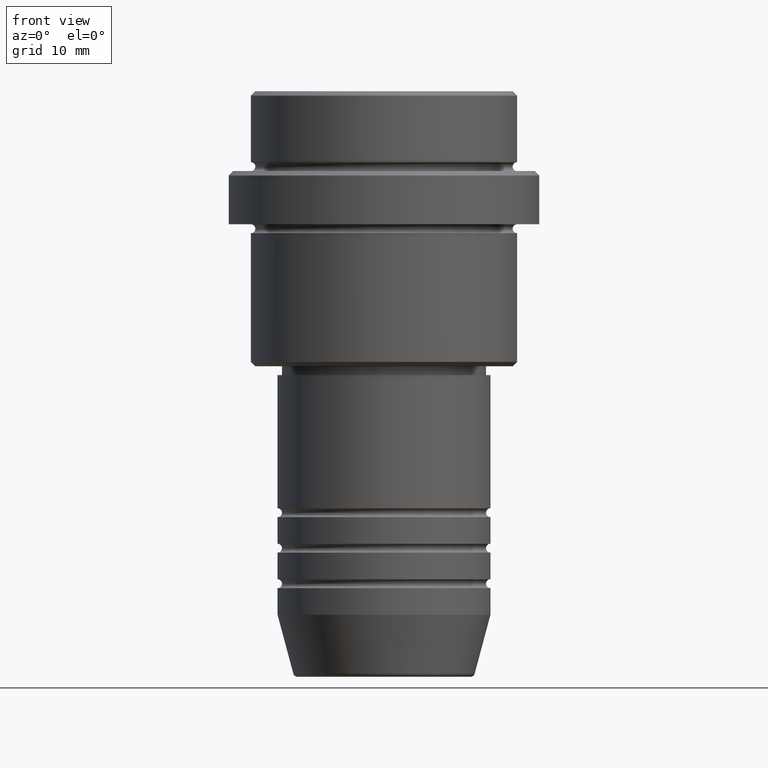
[diagram: clean part render]
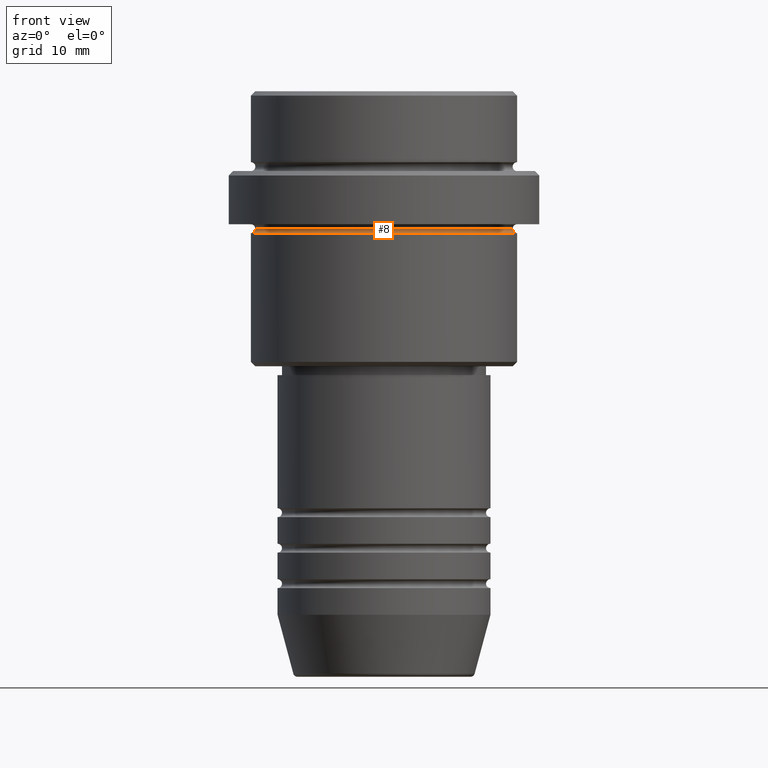
[diagram: same view with one face highlighted and labeled with its STEP entity id]
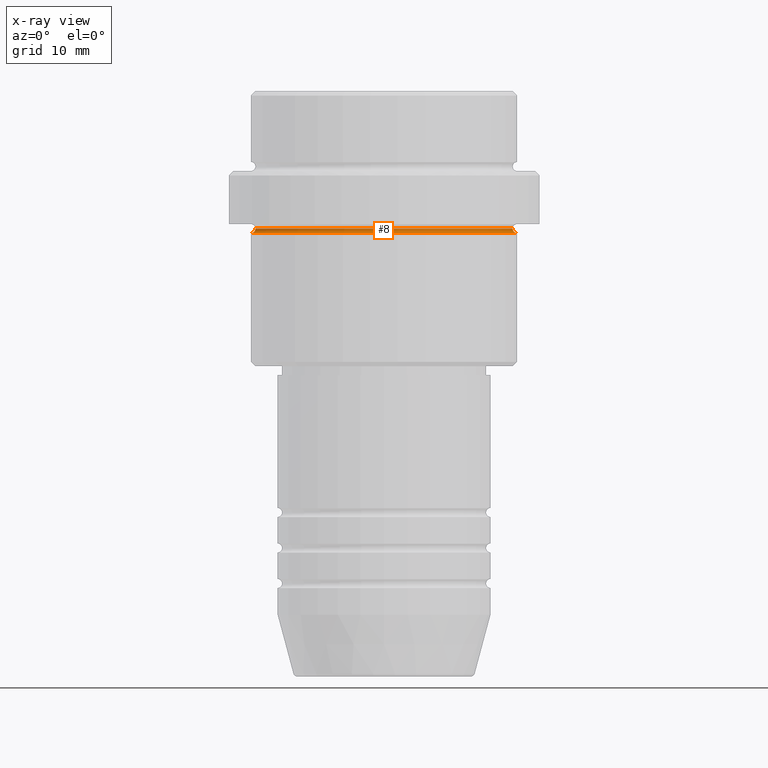
[diagram: x-ray of the same camera — body ghosted, the highlighted face saturated]
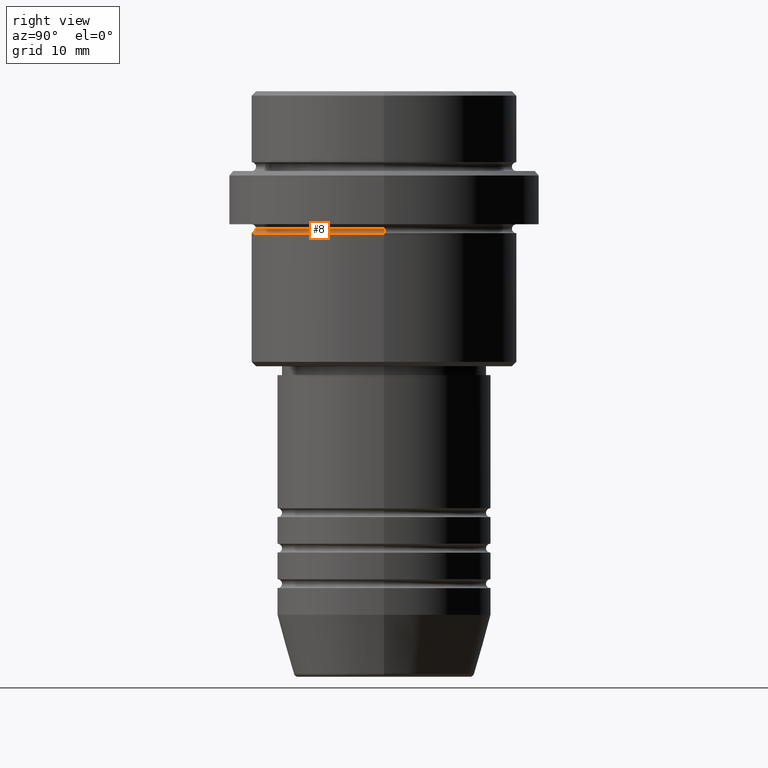
[diagram: same view with one face highlighted and labeled with its STEP entity id]
A machine part, front view. The second image highlights one B-rep face of the part: STEP entity #8.
The next image is the same camera in x-ray: the body ghosted, the highlighted face saturated — about 0% of this face is hidden behind the body in this view.
A second angle (right view) of the same face is appended — the face is thin or edge-on in the first view.
In plain terms, the highlighted toroidal blend (fillet) surface has major radius 15 mm and minor (blend) radius 0.5 mm.
Its self-contained STEP definition (entity closure, byte-faithful):
#2 = VERTEX_POINT ( 'NONE', #1239 ) ;
#8 = ADVANCED_FACE ( 'NONE', ( #243 ), #893, .F. ) ;
#12 = CARTESIAN_POINT ( 'NONE',  ( -14.99999999999999467, 0.000000000000000000, -15.50000000000000000 ) ) ;
#41 = AXIS2_PLACEMENT_3D ( 'NONE', #389, #950, #837 ) ;
#95 = DIRECTION ( 'NONE',  ( 1.000000000000000000, 0.000000000000000000, 0.000000000000000000 ) ) ;
#116 = DIRECTION ( 'NONE',  ( -0.000000000000000000, -1.000000000000000000, -0.000000000000000000 ) ) ;
#156 = VERTEX_POINT ( 'NONE', #1309 ) ;
#162 = CIRCLE ( 'NONE', #633, 0.5000000000000004441 ) ;
#207 = CARTESIAN_POINT ( 'NONE',  ( 0.000000000000000000, 0.000000000000000000, -16.00000000000000000 ) ) ;
#208 = CARTESIAN_POINT ( 'NONE',  ( 14.99999999999999467, 1.836970198721029194E-15, -15.50000000000000000 ) ) ;
#212 = EDGE_CURVE ( 'NONE', #814, #156, #487, .T. ) ;
#243 = FACE_OUTER_BOUND ( 'NONE', #368, .T. ) ;
#349 = AXIS2_PLACEMENT_3D ( 'NONE', #208, #1179, #964 ) ;
#368 = EDGE_LOOP ( 'NONE', ( #617, #663, #1383, #410 ) ) ;
#389 = CARTESIAN_POINT ( 'NONE',  ( 0.000000000000000000, 0.000000000000000000, -15.50000000000000000 ) ) ;
#410 = ORIENTED_EDGE ( 'NONE', *, *, #1275, .F. ) ;
#443 = AXIS2_PLACEMENT_3D ( 'NONE', #207, #1070, #95 ) ;
#455 = CARTESIAN_POINT ( 'NONE',  ( -15.00000000000000355, 1.836970198721029983E-15, -16.00000000000000000 ) ) ;
#487 = CIRCLE ( 'NONE', #853, 14.49999999999999467 ) ;
#572 = CARTESIAN_POINT ( 'NONE',  ( 14.49999999999999467, 1.806354028742345013E-15, -15.50000000000000000 ) ) ;
#617 = ORIENTED_EDGE ( 'NONE', *, *, #1156, .T. ) ;
#620 = EDGE_CURVE ( 'NONE', #2, #814, #1321, .T. ) ;
#633 = AXIS2_PLACEMENT_3D ( 'NONE', #12, #116, #675 ) ;
#663 = ORIENTED_EDGE ( 'NONE', *, *, #620, .T. ) ;
#675 = DIRECTION ( 'NONE',  ( 0.000000000000000000, 0.000000000000000000, -1.000000000000000000 ) ) ;
#739 = VERTEX_POINT ( 'NONE', #455 ) ;
#814 = VERTEX_POINT ( 'NONE', #572 ) ;
#837 = DIRECTION ( 'NONE',  ( -1.000000000000000000, 0.000000000000000000, 0.000000000000000000 ) ) ;
#853 = AXIS2_PLACEMENT_3D ( 'NONE', #1300, #967, #1287 ) ;
#893 = TOROIDAL_SURFACE ( 'NONE', #41, 14.99999999999999467, 0.5000000000000000000 ) ;
#950 = DIRECTION ( 'NONE',  ( 0.000000000000000000, 0.000000000000000000, -1.000000000000000000 ) ) ;
#964 = DIRECTION ( 'NONE',  ( -1.000000000000000000, -1.224646799147349509E-16, 0.000000000000000000 ) ) ;
#967 = DIRECTION ( 'NONE',  ( 0.000000000000000000, 0.000000000000000000, -1.000000000000000000 ) ) ;
#1070 = DIRECTION ( 'NONE',  ( -0.000000000000000000, -0.000000000000000000, 1.000000000000000000 ) ) ;
#1156 = EDGE_CURVE ( 'NONE', #739, #2, #1284, .T. ) ;
#1179 = DIRECTION ( 'NONE',  ( -1.224646799147353207E-16, 1.000000000000000000, 0.000000000000000000 ) ) ;
#1239 = CARTESIAN_POINT ( 'NONE',  ( 15.00000000000000178, 0.000000000000000000, -16.00000000000000000 ) ) ;
#1275 = EDGE_CURVE ( 'NONE', #739, #156, #162, .T. ) ;
#1284 = CIRCLE ( 'NONE', #443, 15.00000000000000178 ) ;
#1287 = DIRECTION ( 'NONE',  ( -1.000000000000000000, 0.000000000000000000, 0.000000000000000000 ) ) ;
#1300 = CARTESIAN_POINT ( 'NONE',  ( 0.000000000000000000, 0.000000000000000000, -15.50000000000000000 ) ) ;
#1309 = CARTESIAN_POINT ( 'NONE',  ( -14.49999999999999467, 0.000000000000000000, -15.50000000000000000 ) ) ;
#1321 = CIRCLE ( 'NONE', #349, 0.5000000000000004441 ) ;
#1383 = ORIENTED_EDGE ( 'NONE', *, *, #212, .T. ) ;